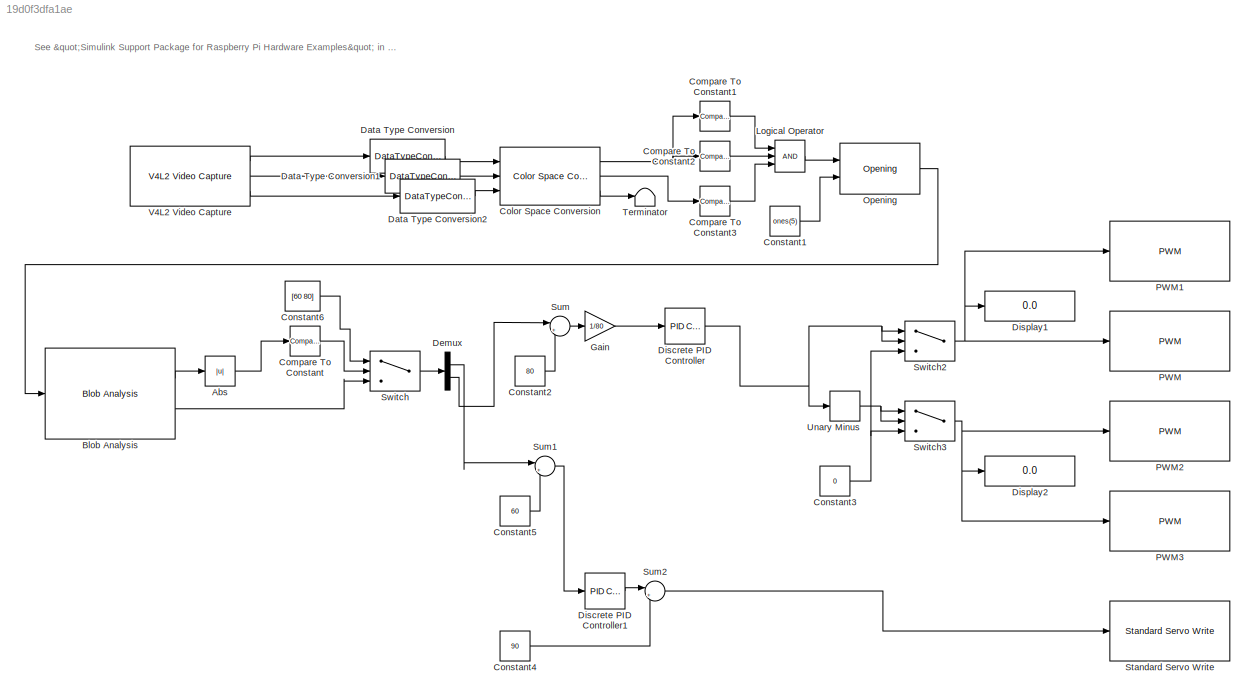
MODEL slx_19d0f3dfa1ae
KIND model
CONFIG AbsTol = auto
CONFIG EnableMultiTasking = on
CONFIG FixedStep = auto
CONFIG MaxStep = auto
CONFIG MinStep = auto
CONFIG RelTol = 1e-3
CONFIG SampleTimeConstraint = Unconstrained
CONFIG Solver = FixedStepAuto
CONFIG SolverName = FixedStepAuto
CONFIG StartTime = 0.0
CONFIG StopTime = 10.0
BLOCK [Abs] Abs
  SaturateOnIntegerOverflow = off
BLOCK [Reference] Blob Analysis  REF=visionstatistics/Blob Analysis
  Ports = [1, 2]
  SourceBlock = visionstatistics/Blob Analysis
  SourceProductBaseCode = VP
  SourceProductName = Computer Vision System Toolbox
  SourceType = Blob Analysis
  Tag = vipblks_row_conv
BLOCK [Reference] Color Space Conversion  REF=visionconversions/Color Space
 Conversion
  Ports = [3, 3]
  SourceBlock = visionconversions/Color Space\n Conversion
  SourceProductBaseCode = VP
  SourceProductName = Computer Vision System Toolbox
  SourceType = Color Space Conversion
BLOCK [Reference] Compare To Constant  REF=simulink/Logic and Bit
Operations/Compare
To Constant
  Ports = [1, 1]
  SourceBlock = simulink/Logic and Bit\nOperations/Compare\nTo Constant
  SourceProductBaseCode = SL
  SourceProductName = Simulink
  SourceType = Compare To Constant
BLOCK [Reference] Compare To Constant1  REF=simulink/Logic and Bit
Operations/Compare
To Constant
  Ports = [1, 1]
  SourceBlock = simulink/Logic and Bit\nOperations/Compare\nTo Constant
  SourceProductBaseCode = SL
  SourceProductName = Simulink
  SourceType = Compare To Constant
BLOCK [Reference] Compare To Constant2  REF=simulink/Logic and Bit
Operations/Compare
To Constant
  Ports = [1, 1]
  SourceBlock = simulink/Logic and Bit\nOperations/Compare\nTo Constant
  SourceProductBaseCode = SL
  SourceProductName = Simulink
  SourceType = Compare To Constant
BLOCK [Reference] Compare To Constant3  REF=simulink/Logic and Bit
Operations/Compare
To Constant
  Ports = [1, 1]
  SourceBlock = simulink/Logic and Bit\nOperations/Compare\nTo Constant
  SourceProductBaseCode = SL
  SourceProductName = Simulink
  SourceType = Compare To Constant
BLOCK [Constant] Constant1
  OutDataTypeStr = boolean
  Value = ones(5)
BLOCK [Constant] Constant2
  OutDataTypeStr = double
  Value = 80
BLOCK [Constant] Constant3
  OutDataTypeStr = double
  Value = 0
BLOCK [Constant] Constant4
  OutDataTypeStr = double
  Value = 90
BLOCK [Constant] Constant5
  OutDataTypeStr = double
  Value = 60
BLOCK [Constant] Constant6
  OutDataTypeStr = double
  Value = [60 80]
BLOCK [DataTypeConversion] Data Type Conversion
  OutDataTypeStr = single
  RndMeth = Floor
  SaturateOnIntegerOverflow = off
BLOCK [DataTypeConversion] Data Type Conversion1
  OutDataTypeStr = single
  RndMeth = Floor
  SaturateOnIntegerOverflow = off
BLOCK [DataTypeConversion] Data Type Conversion2
  OutDataTypeStr = single
  RndMeth = Floor
  SaturateOnIntegerOverflow = off
BLOCK [Demux] Demux
  DisplayOption = bar
  Outputs = 2
  Ports = [1, 2]
BLOCK [Reference] Discrete PID Controller  REF=simulink/Continuous/PID Controller
  Ports = [1, 1]
  SourceBlock = simulink/Continuous/PID Controller
  SourceProductBaseCode = SL
  SourceProductName = Simulink
  SourceType = PID 1dof
BLOCK [Reference] Discrete PID Controller1  REF=simulink/Continuous/PID Controller
  Ports = [1, 1]
  SourceBlock = simulink/Continuous/PID Controller
  SourceProductBaseCode = SL
  SourceProductName = Simulink
  SourceType = PID 1dof
BLOCK [Display] Display1
  Decimation = 1
  Format = short_e
  Ports = [1]
BLOCK [Display] Display2
  Decimation = 1
  Format = short_e
  Ports = [1]
BLOCK [Gain] Gain
  Gain = 1/80
  OutDataTypeStr = double
  ParamDataTypeStr = Inherit: Inherit via internal rule
  SaturateOnIntegerOverflow = off
BLOCK [Logic] Logical Operator
  AllPortsSameDT = off
  Inputs = 3
  OutDataTypeStr = boolean
  Ports = [3, 1]
BLOCK [Reference] Opening  REF=visionmorphops/Opening
  Ports = [2, 1]
  SourceBlock = visionmorphops/Opening
  SourceProductBaseCode = VP
  SourceProductName = Computer Vision System Toolbox
  SourceType = Opening
BLOCK [Reference] PWM  REF=raspberrypilib/PWM
  Ports = [1]
  SourceBlock = raspberrypilib/PWM
  SourceProductBaseCode = RASPPI
  SourceProductName = Simulink Support Package for Raspberry Pi Hardware
  SourceType = raspi.internal.PWMBlock
BLOCK [Reference] PWM1  REF=raspberrypilib/PWM
  Ports = [1]
  SourceBlock = raspberrypilib/PWM
  SourceProductBaseCode = RASPPI
  SourceProductName = Simulink Support Package for Raspberry Pi Hardware
  SourceType = raspi.internal.PWMBlock
BLOCK [Reference] PWM2  REF=raspberrypilib/PWM
  Ports = [1]
  SourceBlock = raspberrypilib/PWM
  SourceProductBaseCode = RASPPI
  SourceProductName = Simulink Support Package for Raspberry Pi Hardware
  SourceType = raspi.internal.PWMBlock
BLOCK [Reference] PWM3  REF=raspberrypilib/PWM
  Ports = [1]
  SourceBlock = raspberrypilib/PWM
  SourceProductBaseCode = RASPPI
  SourceProductName = Simulink Support Package for Raspberry Pi Hardware
  SourceType = raspi.internal.PWMBlock
BLOCK [Reference] Standard Servo Write  REF=raspberrypilib/Standard Servo Write
  Ports = [1]
  SourceBlock = raspberrypilib/Standard Servo Write
  SourceProductBaseCode = RASPPI
  SourceProductName = Simulink Support Package for Raspberry Pi Hardware
  SourceType = raspi.internal.ServoBlock
BLOCK [Sum] Sum
  IconShape = round
  InputSameDT = off
  Inputs = |+-
  OutDataTypeStr = double
  Ports = [2, 1]
  SaturateOnIntegerOverflow = off
BLOCK [Sum] Sum1
  IconShape = round
  InputSameDT = off
  Inputs = |+-
  OutDataTypeStr = double
  Ports = [2, 1]
  SaturateOnIntegerOverflow = off
BLOCK [Sum] Sum2
  IconShape = round
  InputSameDT = off
  Inputs = |++
  OutDataTypeStr = double
  Ports = [2, 1]
  SaturateOnIntegerOverflow = off
BLOCK [Switch] Switch
  Criteria = u2 > Threshold
  InputSameDT = off
  SaturateOnIntegerOverflow = off
BLOCK [Switch] Switch2
  Criteria = u2 > Threshold
  InputSameDT = off
  OutDataTypeStr = double
  SaturateOnIntegerOverflow = off
BLOCK [Switch] Switch3
  Criteria = u2 > Threshold
  InputSameDT = off
  OutDataTypeStr = double
  SaturateOnIntegerOverflow = off
BLOCK [Terminator] Terminator
BLOCK [UnaryMinus] Unary Minus
BLOCK [Reference] V4L2 Video Capture  REF=embdlinuxlib/V4L2 Video Capture
  Ports = [0, 3]
  SourceBlock = embdlinuxlib/V4L2 Video Capture
  SourceProductBaseCode = RASPPI
  SourceProductName = Simulink Support Package for Raspberry Pi Hardware
  SourceType = V4L2 Video Capture
ANNOTATION (root): See "Simulink Support Package for Raspberry Pi Hardware Examples" in MATLAB/Simulink Documents
LINE Abs:1 -> Compare To Constant:1
LINE Blob Analysis:1 -> Abs:1
LINE Blob Analysis:2 -> Switch:3
NET Color Space Conversion:1 -> Compare To Constant1:1, Compare To Constant2:1
LINE Color Space Conversion:2 -> Compare To Constant3:1
LINE Color Space Conversion:3 -> Terminator:1
LINE Compare To Constant1:1 -> Logical Operator:1
LINE Compare To Constant2:1 -> Logical Operator:2
LINE Compare To Constant3:1 -> Logical Operator:3
LINE Compare To Constant:1 -> Switch:2
LINE Constant1:1 -> Opening:2
LINE Constant2:1 -> Sum:2
NET Constant3:1 -> Switch2:3, Switch3:3
LINE Constant4:1 -> Sum2:2
LINE Constant5:1 -> Sum1:2
LINE Constant6:1 -> Switch:1
LINE Data Type Conversion1:1 -> Color Space Conversion:2
LINE Data Type Conversion2:1 -> Color Space Conversion:3
LINE Data Type Conversion:1 -> Color Space Conversion:1
LINE Demux:1 -> Sum1:1
LINE Demux:2 -> Sum:1
LINE Discrete PID Controller1:1 -> Sum2:1
NET Discrete PID Controller:1 -> Switch2:1, Switch2:2, Unary Minus:1
LINE Gain:1 -> Discrete PID Controller:1
LINE Logical Operator:1 -> Opening:1
LINE Opening:1 -> Blob Analysis:1
LINE Sum1:1 -> Discrete PID Controller1:1
LINE Sum2:1 -> Standard Servo Write:1
LINE Sum:1 -> Gain:1
NET Switch2:1 -> Display1:1, PWM1:1, PWM:1
NET Switch3:1 -> Display2:1, PWM2:1, PWM3:1
LINE Switch:1 -> Demux:1
NET Unary Minus:1 -> Switch3:1, Switch3:2
LINE V4L2 Video Capture:1 -> Data Type Conversion:1
LINE V4L2 Video Capture:2 -> Data Type Conversion1:1
LINE V4L2 Video Capture:3 -> Data Type Conversion2:1
note: NET lines group one-source signal fan-out (src -> all destinations, sorted); 1:1 wires keep LINE
